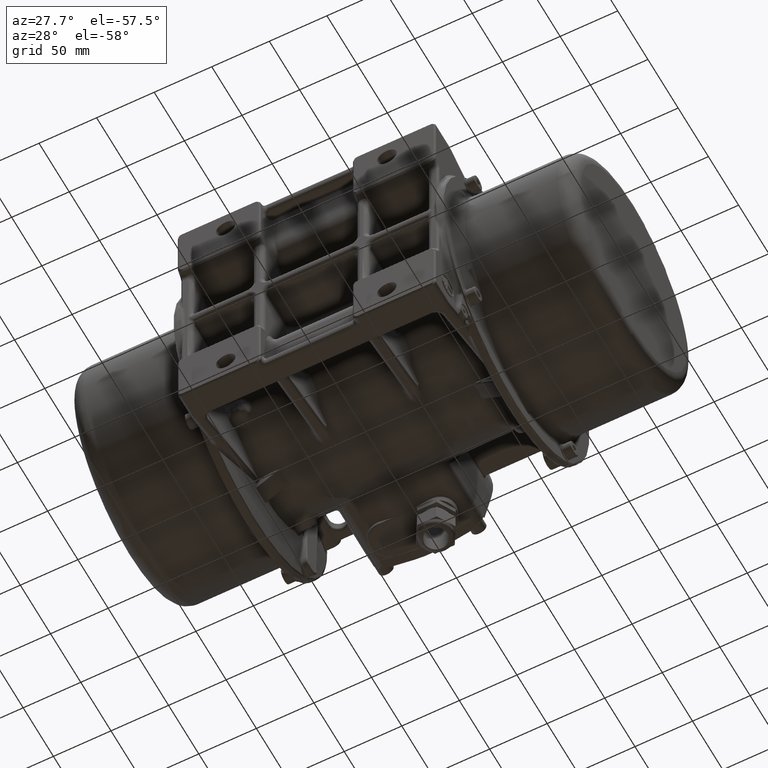
[diagram: clean part render]
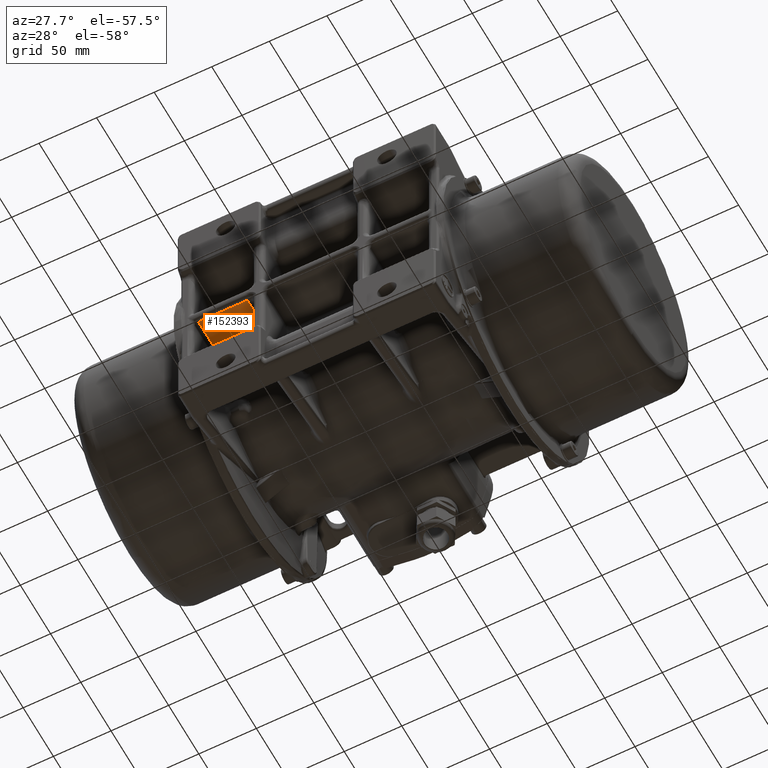
[diagram: same view with one face highlighted and labeled with its STEP entity id]
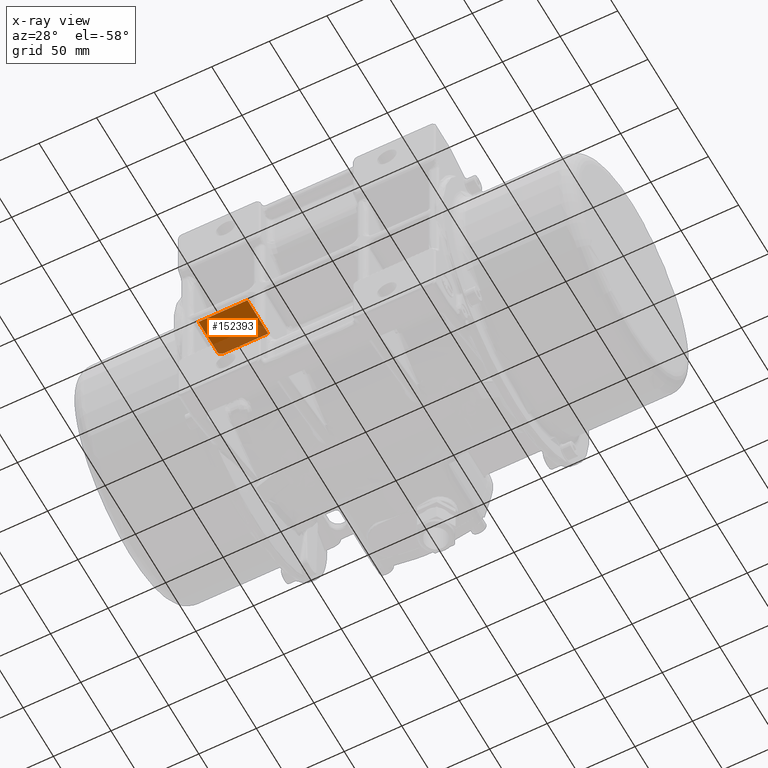
[diagram: x-ray of the same camera — body ghosted, the highlighted face saturated]
A machine part, auxiliary view. The second image highlights one B-rep face of the part: STEP entity #152393.
The next image is the same camera in x-ray: the body ghosted, the highlighted face saturated — about 31% of this face is hidden behind the body in this view.
In plain terms, the highlighted planar face has unit normal (0, 0, -1).
Its self-contained STEP definition (entity closure, byte-faithful):
#10688 = CARTESIAN_POINT ( 'NONE',  ( -103.8577832965113900, -46.71006532424637200, -4.999999999999999100 ) ) ;
#11857 = ORIENTED_EDGE ( 'NONE', *, *, #179568, .F. ) ;
#14760 = DIRECTION ( 'NONE',  ( 0.0000000000000000000, 1.000000000000000000, 0.0000000000000000000 ) ) ;
#15034 = CARTESIAN_POINT ( 'NONE',  ( -82.60795021057128900, -44.44460570660015000, -5.000000000000000000 ) ) ;
#15039 = LINE ( 'NONE', #54060, #173483 ) ;
#26281 = EDGE_CURVE ( 'NONE', #97801, #167962, #36961, .T. ) ;
#27746 = CARTESIAN_POINT ( 'NONE',  ( -103.8591094958523900, -78.89298736819908700, -5.000000000000000000 ) ) ;
#32131 = VECTOR ( 'NONE', #14760, 1000.000000000000000 ) ;
#36305 = CARTESIAN_POINT ( 'NONE',  ( -100.7616631035192000, -44.55706738273288200, -5.000000000000000000 ) ) ;
#36961 = LINE ( 'NONE', #183094, #32131 ) ;
#43163 = DIRECTION ( 'NONE',  ( 0.0000000000000000000, 0.0000000000000000000, -1.000000000000000000 ) ) ;
#45878 = B_SPLINE_CURVE_WITH_KNOTS ( 'NONE', 3,
 ( #56988, #10688, #53251, #72425, #179725, #87872 ),
 .UNSPECIFIED., .F., .F.,
 ( 4, 2, 4 ),
 ( 0.0000000000000000000, 0.5000000000000000000, 1.000000000000000000 ),
 .UNSPECIFIED. ) ;
#49026 = ORIENTED_EDGE ( 'NONE', *, *, #106934, .T. ) ;
#49299 = EDGE_LOOP ( 'NONE', ( #49026, #124762, #11857, #115044, #164458, #82663 ) ) ;
#51693 = CARTESIAN_POINT ( 'NONE',  ( -99.37624417536729000, -44.44460570660015000, -5.000000000000000000 ) ) ;
#53251 = CARTESIAN_POINT ( 'NONE',  ( -103.8037697169549700, -46.47936212927485400, -5.000000000000000900 ) ) ;
#54060 = CARTESIAN_POINT ( 'NONE',  ( -86.35809513450661300, -78.89182797671671200, -4.999999995725599600 ) ) ;
#56233 = CARTESIAN_POINT ( 'NONE',  ( -103.8579501043700000, -78.89182797671671200, -4.999999998290240600 ) ) ;
#56988 = CARTESIAN_POINT ( 'NONE',  ( -103.8579501043700000, -46.94433987698060000, -5.000000000000000000 ) ) ;
#60502 = LINE ( 'NONE', #95167, #101297 ) ;
#64329 = DIRECTION ( 'NONE',  ( 0.0000000000000000000, 1.000000000000000000, 0.0000000000000000000 ) ) ;
#65270 = LINE ( 'NONE', #15034, #110870 ) ;
#72425 = CARTESIAN_POINT ( 'NONE',  ( -103.5945152006524800, -46.05881328253685300, -5.000000000000000000 ) ) ;
#79893 = B_SPLINE_CURVE_WITH_KNOTS ( 'NONE', 3,
 ( #189240, #127524, #128175, #36305, #143558, #51693 ),
 .UNSPECIFIED., .F., .F.,
 ( 4, 2, 4 ),
 ( 0.0000000000000000000, 0.5000000000000000000, 1.000000000000000000 ),
 .UNSPECIFIED. ) ;
#82663 = ORIENTED_EDGE ( 'NONE', *, *, #109886, .T. ) ;
#82734 = CARTESIAN_POINT ( 'NONE',  ( -99.37624417536729000, -44.44460570660015000, -5.000000000000000000 ) ) ;
#86910 = DIRECTION ( 'NONE',  ( 1.000000000000000000, 0.0000000000000000000, 0.0000000000000000000 ) ) ;
#87872 = CARTESIAN_POINT ( 'NONE',  ( -103.2524618830707900, -45.73386076201709500, -5.000000000000000000 ) ) ;
#92507 = EDGE_CURVE ( 'NONE', #157321, #139359, #60502, .T. ) ;
#95167 = CARTESIAN_POINT ( 'NONE',  ( -61.35795031677259500, -61.51698108964210100, -5.000000000000000000 ) ) ;
#97801 = VERTEX_POINT ( 'NONE', #56233 ) ;
#100319 = EDGE_CURVE ( 'NONE', #167962, #160889, #45878, .T. ) ;
#101297 = VECTOR ( 'NONE', #64329, 1000.000000000000000 ) ;
#102222 = PLANE ( 'NONE',  #148743 ) ;
#106934 = EDGE_CURVE ( 'NONE', #188496, #139359, #65270, .T. ) ;
#108196 = CARTESIAN_POINT ( 'NONE',  ( -103.8579501043700000, -46.94433987698060000, -5.000000000000000000 ) ) ;
#109886 = EDGE_CURVE ( 'NONE', #160889, #188496, #79893, .T. ) ;
#110870 = VECTOR ( 'NONE', #122380, 1000.000000000000000 ) ;
#115044 = ORIENTED_EDGE ( 'NONE', *, *, #26281, .T. ) ;
#117132 = CARTESIAN_POINT ( 'NONE',  ( -61.35795031677259500, -44.44460570660015000, -5.000000000000000000 ) ) ;
#118786 = CARTESIAN_POINT ( 'NONE',  ( -61.35795031677259500, -78.89182797671671200, -4.999999998575200200 ) ) ;
#122380 = DIRECTION ( 'NONE',  ( 1.000000000000000000, 0.0000000000000000000, 0.0000000000000000000 ) ) ;
#124762 = ORIENTED_EDGE ( 'NONE', *, *, #92507, .F. ) ;
#127524 = CARTESIAN_POINT ( 'NONE',  ( -102.6964612058822700, -45.31874145883222800, -4.999999999999999100 ) ) ;
#128175 = CARTESIAN_POINT ( 'NONE',  ( -102.0760746257846300, -44.99447959120651300, -5.000000000000000900 ) ) ;
#139359 = VERTEX_POINT ( 'NONE', #117132 ) ;
#143558 = CARTESIAN_POINT ( 'NONE',  ( -100.0710428677044100, -44.44514332245434200, -5.000000000000000000 ) ) ;
#148743 = AXIS2_PLACEMENT_3D ( 'NONE', #27746, #43163, #150431 ) ;
#150431 = DIRECTION ( 'NONE',  ( 0.0000000000000000000, 1.000000000000000000, 0.0000000000000000000 ) ) ;
#152393 = ADVANCED_FACE ( 'NONE', ( #189366 ), #102222, .T. ) ;
#157321 = VERTEX_POINT ( 'NONE', #118786 ) ;
#160889 = VERTEX_POINT ( 'NONE', #174496 ) ;
#164458 = ORIENTED_EDGE ( 'NONE', *, *, #100319, .T. ) ;
#167962 = VERTEX_POINT ( 'NONE', #108196 ) ;
#173483 = VECTOR ( 'NONE', #86910, 1000.000000000000000 ) ;
#174496 = CARTESIAN_POINT ( 'NONE',  ( -103.2524618830707900, -45.73386076201709500, -5.000000000000000000 ) ) ;
#179568 = EDGE_CURVE ( 'NONE', #97801, #157321, #15039, .T. ) ;
#179725 = CARTESIAN_POINT ( 'NONE',  ( -103.4420288717700900, -45.87575135677310100, -5.000000000000000000 ) ) ;
#183094 = CARTESIAN_POINT ( 'NONE',  ( -103.8579501043700000, -61.66821684165839900, -5.000000000000000000 ) ) ;
#188496 = VERTEX_POINT ( 'NONE', #82734 ) ;
#189240 = CARTESIAN_POINT ( 'NONE',  ( -103.2524618830707900, -45.73386076201709500, -5.000000000000000000 ) ) ;
#189366 = FACE_OUTER_BOUND ( 'NONE', #49299, .T. ) ;